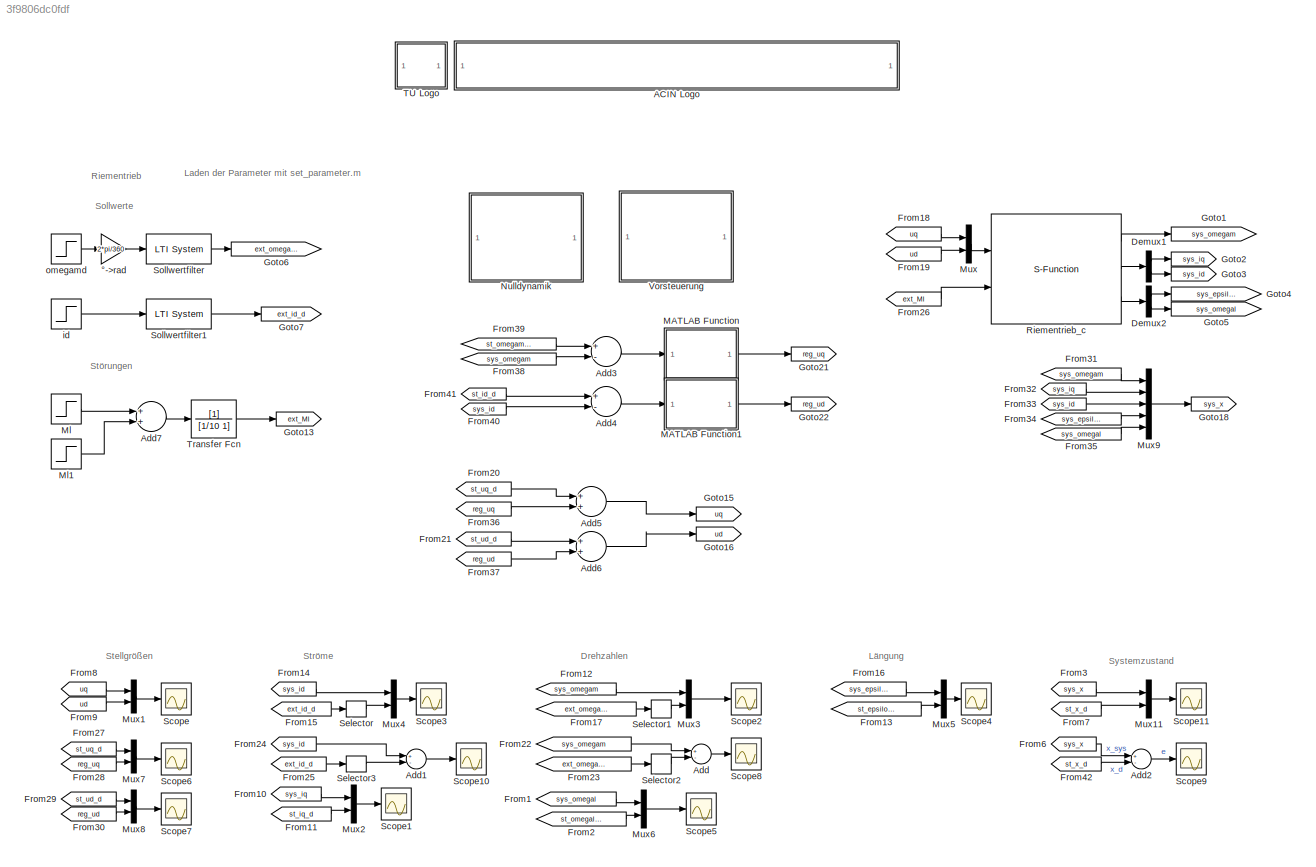
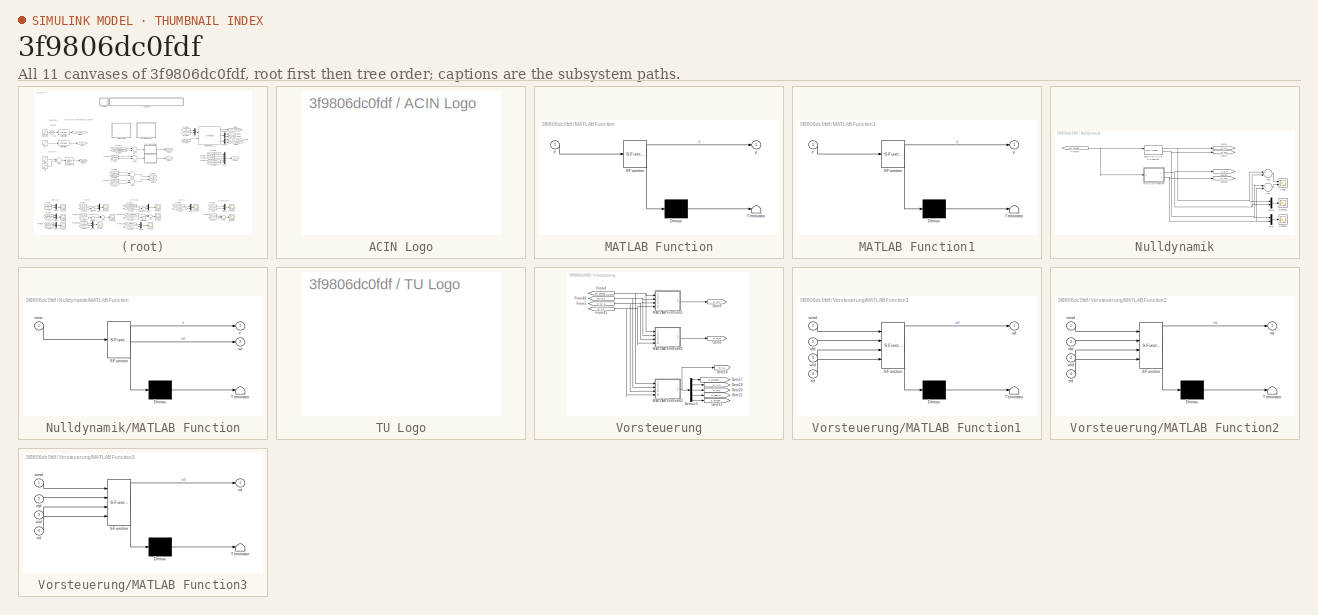
[diagram: thumbnail index - all 11 canvases of the model, root first then tree order]
MODEL slx_3f9806dc0fdf
KIND model
CONFIG AbsTol = auto
CONFIG FixedStep = auto
CONFIG InitFcn = set_parameter
CONFIG MaxStep = auto
CONFIG MinStep = auto
CONFIG RelTol = 1e-3
CONFIG SampleTimeConstraint = Unconstrained
CONFIG Solver = ode45
CONFIG SolverMode = SingleTasking
CONFIG SolverName = ode45
CONFIG StartTime = 0.0
CONFIG StopTime = 20.0
BLOCK [SubSystem] ACIN Logo
  Ports = []
  RequestExecContextInheritance = off
  UserDataPersistent = on
  Variant = off
BLOCK [Sum] Add
  InputSameDT = off
  Inputs = +-
  OutDataTypeStr = Inherit: Inherit via internal rule
  Ports = [2, 1]
  SaturateOnIntegerOverflow = off
BLOCK [Sum] Add1
  InputSameDT = off
  Inputs = +-
  OutDataTypeStr = Inherit: Inherit via internal rule
  Ports = [2, 1]
  SaturateOnIntegerOverflow = off
BLOCK [Sum] Add2
  InputSameDT = off
  Inputs = +-
  OutDataTypeStr = Inherit: Inherit via internal rule
  Ports = [2, 1]
  SaturateOnIntegerOverflow = off
BLOCK [Sum] Add3
  InputSameDT = off
  Inputs = +-
  OutDataTypeStr = Inherit: Inherit via internal rule
  Ports = [2, 1]
  SaturateOnIntegerOverflow = off
BLOCK [Sum] Add4
  InputSameDT = off
  Inputs = +-
  OutDataTypeStr = Inherit: Inherit via internal rule
  Ports = [2, 1]
  SaturateOnIntegerOverflow = off
BLOCK [Sum] Add5
  InputSameDT = off
  OutDataTypeStr = Inherit: Inherit via internal rule
  Ports = [2, 1]
  SaturateOnIntegerOverflow = off
BLOCK [Sum] Add6
  InputSameDT = off
  OutDataTypeStr = Inherit: Inherit via internal rule
  Ports = [2, 1]
  SaturateOnIntegerOverflow = off
BLOCK [Sum] Add7
  InputSameDT = off
  OutDataTypeStr = Inherit: Inherit via internal rule
  Ports = [2, 1]
  SaturateOnIntegerOverflow = off
BLOCK [Demux] Demux1
  DisplayOption = bar
  Outputs = 2
  Ports = [1, 2]
BLOCK [Demux] Demux2
  DisplayOption = bar
  Outputs = 2
  Ports = [1, 2]
BLOCK [From] From1
  GotoTag = sys_omegal
  TagVisibility = global
BLOCK [From] From10
  GotoTag = sys_iq
  TagVisibility = global
BLOCK [From] From11
  GotoTag = st_iq_d
  TagVisibility = global
BLOCK [From] From12
  GotoTag = sys_omegam
  TagVisibility = global
BLOCK [From] From13
  GotoTag = st_epsilon_d
  TagVisibility = global
BLOCK [From] From14
  GotoTag = sys_id
  TagVisibility = global
BLOCK [From] From15
  GotoTag = ext_id_d
  TagVisibility = global
BLOCK [From] From16
  GotoTag = sys_epsilon
  TagVisibility = global
BLOCK [From] From17
  GotoTag = ext_omegam_d
  TagVisibility = global
BLOCK [From] From18
  GotoTag = uq
  TagVisibility = global
BLOCK [From] From19
  GotoTag = ud
  TagVisibility = global
BLOCK [From] From2
  GotoTag = st_omegal_d
  TagVisibility = global
BLOCK [From] From20
  GotoTag = st_uq_d
  TagVisibility = global
BLOCK [From] From21
  GotoTag = st_ud_d
  TagVisibility = global
BLOCK [From] From22
  GotoTag = sys_omegam
  TagVisibility = global
BLOCK [From] From23
  GotoTag = ext_omegam_d
  TagVisibility = global
BLOCK [From] From24
  GotoTag = sys_id
  TagVisibility = global
BLOCK [From] From25
  GotoTag = ext_id_d
  TagVisibility = global
BLOCK [From] From26
  GotoTag = ext_Ml
  TagVisibility = global
BLOCK [From] From27
  GotoTag = st_uq_d
  TagVisibility = global
BLOCK [From] From28
  GotoTag = reg_uq
  TagVisibility = global
BLOCK [From] From29
  GotoTag = st_ud_d
  TagVisibility = global
BLOCK [From] From3
  GotoTag = sys_x
  TagVisibility = global
BLOCK [From] From30
  GotoTag = reg_ud
  TagVisibility = global
BLOCK [From] From31
  GotoTag = sys_omegam
  TagVisibility = global
BLOCK [From] From32
  GotoTag = sys_iq
  TagVisibility = global
BLOCK [From] From33
  GotoTag = sys_id
  TagVisibility = global
BLOCK [From] From34
  GotoTag = sys_epsilon
  TagVisibility = global
BLOCK [From] From35
  GotoTag = sys_omegal
  TagVisibility = global
BLOCK [From] From36
  GotoTag = reg_uq
  TagVisibility = global
BLOCK [From] From37
  GotoTag = reg_ud
  TagVisibility = global
BLOCK [From] From38
  GotoTag = sys_omegam
  TagVisibility = global
BLOCK [From] From39
  GotoTag = st_omegam_d
  TagVisibility = global
BLOCK [From] From40
  GotoTag = sys_id
  TagVisibility = global
BLOCK [From] From41
  GotoTag = st_id_d
  TagVisibility = global
BLOCK [From] From42
  GotoTag = st_x_d
  TagVisibility = global
BLOCK [From] From6
  GotoTag = sys_x
  TagVisibility = global
BLOCK [From] From7
  GotoTag = st_x_d
  TagVisibility = global
BLOCK [From] From8
  GotoTag = uq
  TagVisibility = global
BLOCK [From] From9
  GotoTag = ud
  TagVisibility = global
BLOCK [Goto] Goto1
  GotoTag = sys_omegam
  TagVisibility = global
BLOCK [Goto] Goto13
  GotoTag = ext_Ml
  TagVisibility = global
BLOCK [Goto] Goto15
  GotoTag = uq
  TagVisibility = global
BLOCK [Goto] Goto16
  GotoTag = ud
  TagVisibility = global
BLOCK [Goto] Goto18
  GotoTag = sys_x
  TagVisibility = global
BLOCK [Goto] Goto2
  GotoTag = sys_iq
  TagVisibility = global
BLOCK [Goto] Goto21
  GotoTag = reg_uq
  TagVisibility = global
BLOCK [Goto] Goto22
  GotoTag = reg_ud
  TagVisibility = global
BLOCK [Goto] Goto3
  GotoTag = sys_id
  TagVisibility = global
BLOCK [Goto] Goto4
  GotoTag = sys_epsilon
  TagVisibility = global
BLOCK [Goto] Goto5
  GotoTag = sys_omegal
  TagVisibility = global
BLOCK [Goto] Goto6
  GotoTag = ext_omegam_d
  TagVisibility = global
BLOCK [Goto] Goto7
  GotoTag = ext_id_d
  TagVisibility = global
BLOCK [SubSystem] MATLAB Function
  ErrorFcn = Stateflow.Translate.translate
  PermitHierarchicalResolution = ExplicitOnly
  Ports = [1, 1]
  RequestExecContextInheritance = off
  SFBlockType = MATLAB Function
  TreatAsAtomicUnit = on
  Variant = off
BLOCK [Demux] MATLAB Function/ Demux 
  Outputs = 1
  Ports = [1, 1]
BLOCK [S-Function] MATLAB Function/ SFunction 
  EnableBusSupport = on
  FunctionName = sf_sfun
  Parameters = parPI
  PortCounts = [1 2]
  Ports = [1, 2]
  SFunctionDeploymentMode = off
  Tag = Stateflow S-Function Sim_Riementrieb 5
BLOCK [Terminator] MATLAB Function/ Terminator 
BLOCK [Inport] MATLAB Function/e
  IconDisplay = Port number
BLOCK [Outport] MATLAB Function/y
  IconDisplay = Port number
BLOCK [SubSystem] MATLAB Function1
  ErrorFcn = Stateflow.Translate.translate
  PermitHierarchicalResolution = ExplicitOnly
  Ports = [1, 1]
  RequestExecContextInheritance = off
  SFBlockType = MATLAB Function
  TreatAsAtomicUnit = on
  Variant = off
BLOCK [Demux] MATLAB Function1/ Demux 
  Outputs = 1
  Ports = [1, 1]
BLOCK [S-Function] MATLAB Function1/ SFunction 
  EnableBusSupport = on
  FunctionName = sf_sfun
  Parameters = parPI
  PortCounts = [1 2]
  Ports = [1, 2]
  SFunctionDeploymentMode = off
  Tag = Stateflow S-Function Sim_Riementrieb 6
BLOCK [Terminator] MATLAB Function1/ Terminator 
BLOCK [Inport] MATLAB Function1/e
  IconDisplay = Port number
BLOCK [Outport] MATLAB Function1/y
  IconDisplay = Port number
BLOCK [Step] Ml
  After = 0.1
  SampleTime = 0
  Time = 8
BLOCK [Step] Ml1
  After = -0.1
  SampleTime = 0
  Time = 15
BLOCK [Mux] Mux
  DisplayOption = bar
  Inputs = 2
  Ports = [2, 1]
BLOCK [Mux] Mux1
  DisplayOption = bar
  Inputs = 2
  Ports = [2, 1]
BLOCK [Mux] Mux11
  DisplayOption = bar
  Inputs = 2
  Ports = [2, 1]
BLOCK [Mux] Mux2
  DisplayOption = bar
  Inputs = 2
  Ports = [2, 1]
BLOCK [Mux] Mux3
  DisplayOption = bar
  Inputs = 2
  Ports = [2, 1]
BLOCK [Mux] Mux4
  DisplayOption = bar
  Inputs = 2
  Ports = [2, 1]
BLOCK [Mux] Mux5
  DisplayOption = bar
  Inputs = 2
  Ports = [2, 1]
BLOCK [Mux] Mux6
  DisplayOption = bar
  Inputs = 2
  Ports = [2, 1]
BLOCK [Mux] Mux7
  DisplayOption = bar
  Inputs = 2
  Ports = [2, 1]
BLOCK [Mux] Mux8
  DisplayOption = bar
  Inputs = 2
  Ports = [2, 1]
BLOCK [Mux] Mux9
  DisplayOption = bar
  Inputs = 5
  Ports = [5, 1]
BLOCK [SubSystem] Nulldynamik
  Ports = []
  RequestExecContextInheritance = off
  Variant = off
BLOCK [Sum] Nulldynamik/Add
  InputSameDT = off
  Inputs = +-
  OutDataTypeStr = Inherit: Inherit via internal rule
  Ports = [2, 1]
  SaturateOnIntegerOverflow = off
BLOCK [Sum] Nulldynamik/Add1
  InputSameDT = off
  Inputs = +-
  OutDataTypeStr = Inherit: Inherit via internal rule
  Ports = [2, 1]
  SaturateOnIntegerOverflow = off
BLOCK [From] Nulldynamik/From44
  GotoTag = ext_omegam_d
  TagVisibility = global
BLOCK [Goto] Nulldynamik/Goto1
  Commented = on
  GotoTag = st_e_d
  TagVisibility = global
BLOCK [Goto] Nulldynamik/Goto10
  GotoTag = st_e_d
  TagVisibility = global
BLOCK [Goto] Nulldynamik/Goto2
  Commented = on
  GotoTag = st_wl_d
  TagVisibility = global
BLOCK [Goto] Nulldynamik/Goto23
  GotoTag = st_wl_d
  TagVisibility = global
BLOCK [M-S-Function] Nulldynamik/Level-2 MATLAB S-Function
  Commented = on
  FunctionName = Nulldynamik
  Parameters = parSys.eta_1_0 parSys.eta_2_0 [parSys.cr1 parSys.cr3 parSys.rl parSys.rm parSys.dl parSys.Il]
  Ports = [2, 2]
BLOCK [SubSystem] Nulldynamik/MATLAB Function
  ErrorFcn = Stateflow.Translate.translate
  PermitHierarchicalResolution = ExplicitOnly
  Ports = [1, 2]
  RequestExecContextInheritance = off
  SFBlockType = MATLAB Function
  TreatAsAtomicUnit = on
  Variant = off
BLOCK [Demux] Nulldynamik/MATLAB Function/ Demux 
  Outputs = 1
  Ports = [1, 1]
BLOCK [S-Function] Nulldynamik/MATLAB Function/ SFunction 
  EnableBusSupport = on
  FunctionName = sf_sfun
  Parameters = parSys
  PortCounts = [1 3]
  Ports = [1, 3]
  SFunctionDeploymentMode = off
  Tag = Stateflow S-Function Sim_Riementrieb 2
BLOCK [Terminator] Nulldynamik/MATLAB Function/ Terminator 
BLOCK [Outport] Nulldynamik/MATLAB Function/e
  IconDisplay = Port number
BLOCK [Outport] Nulldynamik/MATLAB Function/wl
  IconDisplay = Port number
  Port = 2
BLOCK [Inport] Nulldynamik/MATLAB Function/wmv
  IconDisplay = Port number
BLOCK [Mux] Nulldynamik/Mux
  DisplayOption = bar
  Inputs = 2
  Ports = [2, 1]
BLOCK [Mux] Nulldynamik/Mux1
  DisplayOption = bar
  Inputs = 2
  Ports = [2, 1]
BLOCK [Scope] Nulldynamik/Scope
  NumInputPorts = 2
  Ports = [2]
  ScopeSpecificationString = C++SS(StrPVP('Location','[1, 48, 1281, 759]'),StrPVP('Open','off'),MxPVP('AxesTitles',24,'struct(''axes1'',''%<SignalLabel>'',''axes2'',''%<SignalLabel>'')'),MxPVP('ScopeGraphics',28,'struct(''FigureColor'',''[0.5 0.5 0.5]'',''AxesColor'',''[0 0 0]'',''AxesTickColor'',''[1 1 1]'',''LineColors'',''[1 1 0;1 0 1;0 1 1;1 0 0;0 1 0;0 0 1]'',''LineStyles'',''-|-|-|-|-|-'',''LineWidths'',''[0.5 0.5 0.5 0...<+362ch>
BLOCK [Scope] Nulldynamik/Scope12
  Ports = [1]
  ScopeSpecificationString = C++SS(StrPVP('Location','[5, 48, 1285, 759]'),StrPVP('Open','off'),MxPVP('AxesTitles',24,'struct(''axes1'',''%<SignalLabel>'')'),MxPVP('ScopeGraphics',28,'struct(''FigureColor'',''[0.5 0.5 0.5]'',''AxesColor'',''[0 0 0]'',''AxesTickColor'',''[1 1 1]'',''LineColors'',''[1 1 0;1 0 1;0 1 1;1 0 0;0 1 0;0 0 1]'',''LineStyles'',''-|-|-|-|-|-'',''LineWidths'',''[0.5 0.5 0.5 0.5 0.5 0.5]'',''MarkerStyles'...<+318ch>
BLOCK [Scope] Nulldynamik/Scope13
  Ports = [1]
  ScopeSpecificationString = C++SS(StrPVP('Location','[5, 48, 1285, 759]'),StrPVP('Open','off'),MxPVP('AxesTitles',24,'struct(''axes1'',''%<SignalLabel>'')'),MxPVP('ScopeGraphics',28,'struct(''FigureColor'',''[0.5 0.5 0.5]'',''AxesColor'',''[0 0 0]'',''AxesTickColor'',''[1 1 1]'',''LineColors'',''[1 1 0;1 0 1;0 1 1;1 0 0;0 1 0;0 0 1]'',''LineStyles'',''-|-|-|-|-|-'',''LineWidths'',''[0.5 0.5 0.5 0.5 0.5 0.5]'',''MarkerStyles'...<+271ch>
BLOCK [S-Function] Riementrieb_c
  EnableBusSupport = off
  FunctionName = Riementrieb_S_c
  Parameters = parSys
  Ports = [2, 3]
  SFunctionDeploymentMode = off
BLOCK [Scope] Scope
  Ports = [1]
  ScopeSpecificationString = C++SS(StrPVP('Location','[1, 48, 1281, 759]'),StrPVP('Open','off'),MxPVP('AxesTitles',24,'struct(''axes1'',''%<SignalLabel>'')'),MxPVP('ScopeGraphics',28,'struct(''FigureColor'',''[0.5 0.5 0.5]'',''AxesColor'',''[0 0 0]'',''AxesTickColor'',''[1 1 1]'',''LineColors'',''[1 1 0;1 0 1;0 1 1;1 0 0;0 1 0;0 0 1]'',''LineStyles'',''-|-|-|-|-|-'',''LineWidths'',''[0.5 0.5 0.5 0.5 0.5 0.5]'',''MarkerStyles'...<+277ch>
BLOCK [Scope] Scope1
  Ports = [1]
  ScopeSpecificationString = C++SS(StrPVP('Location','[5, 52, 1285, 993]'),StrPVP('Open','off'),MxPVP('AxesTitles',24,'struct(''axes1'',''%<SignalLabel>'')'),StrPVP('ShowLegends','off'),StrPVP('YMin','-300000'),StrPVP('YMax','275000'),StrPVP('SaveName','ScopeData1'),StrPVP('DataFormat','StructureWithTime'),StrPVP('LimitDataPoints','off'),StrPVP('BlockParamSampleTime','0'),StrPVP('Decimation','1'),StrPVP('BlockParamSampleInput...<+9ch>
BLOCK [Scope] Scope10
  Ports = [1]
  ScopeSpecificationString = C++SS(StrPVP('Location','[5, 52, 1285, 993]'),StrPVP('Open','off'),MxPVP('AxesTitles',24,'struct(''axes1'',''%<SignalLabel>'')'),StrPVP('ShowLegends','off'),StrPVP('SaveName','ScopeData10'),StrPVP('DataFormat','StructureWithTime'),StrPVP('LimitDataPoints','off'),StrPVP('BlockParamSampleTime','0'),StrPVP('Decimation','1'),StrPVP('BlockParamSampleInput','off'))
BLOCK [Scope] Scope11
  Ports = [1]
  ScopeSpecificationString = Simulink.scopes.TimeScopeBlockCfg('CurrentConfiguration', extmgr.ConfigurationSet(extmgr.Configuration('Core','General UI',true),extmgr.Configuration('Core','Source UI',true),extmgr.Configuration('Sources','WiredSimulink',true,'DataLoggingVariableName','ScopeData11','DataLoggingSaveFormat','StructureWithTime','DataLoggingDecimation','1','DataLoggingDecimateData',true),extmgr.Configuration('Visuals...<+1854ch>
BLOCK [Scope] Scope2
  Ports = [1]
  ScopeSpecificationString = C++SS(StrPVP('Location','[5, 48, 1285, 759]'),StrPVP('Open','off'),MxPVP('AxesTitles',24,'struct(''axes1'',''%<SignalLabel>'')'),MxPVP('ScopeGraphics',28,'struct(''FigureColor'',''[0.5 0.5 0.5]'',''AxesColor'',''[0 0 0]'',''AxesTickColor'',''[1 1 1]'',''LineColors'',''[1 1 0;1 0 1;0 1 1;1 0 0;0 1 0;0 0 1]'',''LineStyles'',''-|-|-|-|-|-'',''LineWidths'',''[0.5 0.5 0.5 0.5 0.5 0.5]'',''MarkerStyles'...<+360ch>
BLOCK [Scope] Scope3
  Ports = [1]
  ScopeSpecificationString = C++SS(StrPVP('Location','[5, 52, 1285, 993]'),StrPVP('Open','off'),MxPVP('AxesTitles',24,'struct(''axes1'',''%<SignalLabel>'')'),StrPVP('ShowLegends','off'),StrPVP('TimeRange','1.762100082034454'),StrPVP('YMin','0.005081206496519733'),StrPVP('YMax','0.107262180974478'),StrPVP('SaveName','ScopeData3'),StrPVP('DataFormat','StructureWithTime'),StrPVP('LimitDataPoints','off'),StrPVP('BlockParamSampleT...<+73ch>
BLOCK [Scope] Scope4
  Ports = [1]
  ScopeSpecificationString = C++SS(StrPVP('Location','[10, 60, 1290, 1001]'),StrPVP('Open','off'),MxPVP('AxesTitles',24,'struct(''axes1'',''%<SignalLabel>'')'),MxPVP('ScopeGraphics',28,'struct(''FigureColor'',''[0.5 0.5 0.5]'',''AxesColor'',''[0 0 0]'',''AxesTickColor'',''[1 1 1]'',''LineColors'',''[1 1 0;1 0 1;0 1 1;1 0 0;0 1 0;0 0 1]'',''LineStyles'',''-|-|-|-|-|-'',''LineWidths'',''[0.5 0.5 0.5 0.5 0.5 0.5]'',''MarkerStyle...<+314ch>
BLOCK [Scope] Scope5
  Ports = [1]
  ScopeSpecificationString = C++SS(StrPVP('Location','[5, 52, 1285, 993]'),StrPVP('Open','off'),MxPVP('AxesTitles',24,'struct(''axes1'',''%<SignalLabel>'')'),StrPVP('ShowLegends','off'),StrPVP('YMin','0'),StrPVP('YMax','7'),StrPVP('SaveName','ScopeData5'),StrPVP('DataFormat','StructureWithTime'),StrPVP('LimitDataPoints','off'),StrPVP('BlockParamSampleTime','0'),StrPVP('Decimation','1'),StrPVP('BlockParamSampleInput','off'))
BLOCK [Scope] Scope6
  Ports = [1]
  ScopeSpecificationString = C++SS(StrPVP('Location','[5, 48, 1285, 759]'),StrPVP('Open','off'),MxPVP('AxesTitles',24,'struct(''axes1'',''%<SignalLabel>'')'),MxPVP('ScopeGraphics',28,'struct(''FigureColor'',''[0.5 0.5 0.5]'',''AxesColor'',''[0 0 0]'',''AxesTickColor'',''[1 1 1]'',''LineColors'',''[1 1 0;1 0 1;0 1 1;1 0 0;0 1 0;0 0 1]'',''LineStyles'',''-|-|-|-|-|-'',''LineWidths'',''[0.5 0.5 0.5 0.5 0.5 0.5]'',''MarkerStyles'...<+322ch>
BLOCK [Scope] Scope7
  Ports = [1]
  ScopeSpecificationString = C++SS(StrPVP('Location','[1, 48, 1281, 759]'),StrPVP('Open','off'),MxPVP('AxesTitles',24,'struct(''axes1'',''%<SignalLabel>'')'),MxPVP('ScopeGraphics',28,'struct(''FigureColor'',''[0.5 0.5 0.5]'',''AxesColor'',''[0 0 0]'',''AxesTickColor'',''[1 1 1]'',''LineColors'',''[1 1 0;1 0 1;0 1 1;1 0 0;0 1 0;0 0 1]'',''LineStyles'',''-|-|-|-|-|-'',''LineWidths'',''[0.5 0.5 0.5 0.5 0.5 0.5]'',''MarkerStyles'...<+322ch>
BLOCK [Scope] Scope8
  Ports = [1]
  ScopeSpecificationString = C++SS(StrPVP('Location','[5, 52, 1285, 993]'),StrPVP('Open','off'),MxPVP('AxesTitles',24,'struct(''axes1'',''%<SignalLabel>'')'),StrPVP('ShowLegends','off'),StrPVP('SaveName','ScopeData8'),StrPVP('DataFormat','StructureWithTime'),StrPVP('LimitDataPoints','off'),StrPVP('BlockParamSampleTime','0'),StrPVP('Decimation','1'),StrPVP('BlockParamSampleInput','off'))
BLOCK [Scope] Scope9
  Ports = [1]
  ScopeSpecificationString = Simulink.scopes.TimeScopeBlockCfg('CurrentConfiguration', extmgr.ConfigurationSet(extmgr.Configuration('Core','General UI',true),extmgr.Configuration('Core','Source UI',true),extmgr.Configuration('Sources','WiredSimulink',true,'DataLoggingVariableName','ScopeData9','DataLoggingSaveFormat','StructureWithTime','DataLoggingDecimation','1','DataLoggingDecimateData',true),extmgr.Configuration('Visuals'...<+1724ch>
BLOCK [Selector] Selector
  IndexOptions = Index vector (dialog)
  Indices = [1]
  InputPortWidth = 2
  OutputSizes = 1
  Ports = [1, 1]
BLOCK [Selector] Selector1
  IndexOptions = Index vector (dialog)
  Indices = [1]
  InputPortWidth = 3
  OutputSizes = 1
  Ports = [1, 1]
BLOCK [Selector] Selector2
  IndexOptions = Index vector (dialog)
  Indices = [1]
  InputPortWidth = 3
  OutputSizes = 1
  Ports = [1, 1]
BLOCK [Selector] Selector3
  IndexOptions = Index vector (dialog)
  Indices = [1]
  InputPortWidth = 2
  OutputSizes = 1
  Ports = [1, 1]
BLOCK [Reference] Sollwertfilter  REF=cstblocks/LTI System
  Ports = [1, 1]
  SourceBlock = cstblocks/LTI System
  SourceType = LTI Block
BLOCK [Reference] Sollwertfilter1  REF=cstblocks/LTI System
  Ports = [1, 1]
  SourceBlock = cstblocks/LTI System
  SourceType = LTI Block
BLOCK [SubSystem] TU Logo
  Ports = []
  RequestExecContextInheritance = off
  UserDataPersistent = on
  Variant = off
BLOCK [TransferFcn] Transfer Fcn
  Denominator = [1/10 1]
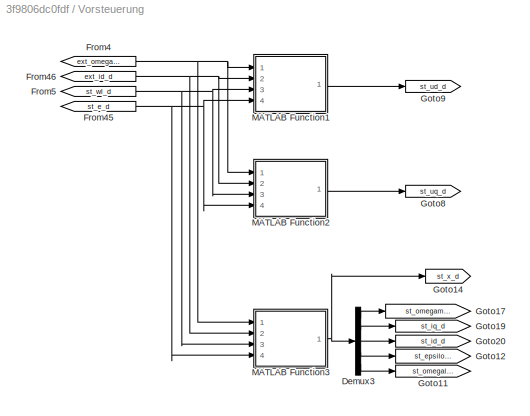
BLOCK [SubSystem] Vorsteuerung
  Ports = []
  RequestExecContextInheritance = off
  Variant = off
BLOCK [Demux] Vorsteuerung/Demux3
  DisplayOption = bar
  Outputs = 5
  Ports = [1, 5]
BLOCK [From] Vorsteuerung/From4
  GotoTag = ext_omegam_d
  TagVisibility = global
BLOCK [From] Vorsteuerung/From45
  GotoTag = st_e_d
  TagVisibility = global
BLOCK [From] Vorsteuerung/From46
  GotoTag = ext_id_d
  TagVisibility = global
BLOCK [From] Vorsteuerung/From5
  GotoTag = st_wl_d
  TagVisibility = global
BLOCK [Goto] Vorsteuerung/Goto11
  GotoTag = st_omegal_d
  TagVisibility = global
BLOCK [Goto] Vorsteuerung/Goto12
  GotoTag = st_epsilon_d
  TagVisibility = global
BLOCK [Goto] Vorsteuerung/Goto14
  GotoTag = st_x_d
  TagVisibility = global
BLOCK [Goto] Vorsteuerung/Goto17
  GotoTag = st_omegam_d
  TagVisibility = global
BLOCK [Goto] Vorsteuerung/Goto19
  GotoTag = st_iq_d
  TagVisibility = global
BLOCK [Goto] Vorsteuerung/Goto20
  GotoTag = st_id_d
  TagVisibility = global
BLOCK [Goto] Vorsteuerung/Goto8
  GotoTag = st_uq_d
  TagVisibility = global
BLOCK [Goto] Vorsteuerung/Goto9
  GotoTag = st_ud_d
  TagVisibility = global
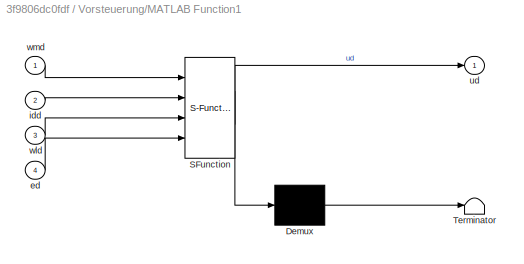
BLOCK [SubSystem] Vorsteuerung/MATLAB Function1
  ErrorFcn = Stateflow.Translate.translate
  PermitHierarchicalResolution = ExplicitOnly
  Ports = [4, 1]
  RequestExecContextInheritance = off
  SFBlockType = MATLAB Function
  TreatAsAtomicUnit = on
  Variant = off
BLOCK [Demux] Vorsteuerung/MATLAB Function1/ Demux 
  Outputs = 1
  Ports = [1, 1]
BLOCK [S-Function] Vorsteuerung/MATLAB Function1/ SFunction 
  EnableBusSupport = on
  FunctionName = sf_sfun
  Parameters = parSys
  PortCounts = [4 2]
  Ports = [4, 2]
  SFunctionDeploymentMode = off
  Tag = Stateflow S-Function Sim_Riementrieb 1
BLOCK [Terminator] Vorsteuerung/MATLAB Function1/ Terminator 
BLOCK [Inport] Vorsteuerung/MATLAB Function1/ed
  IconDisplay = Port number
  Port = 4
BLOCK [Inport] Vorsteuerung/MATLAB Function1/idd
  IconDisplay = Port number
  Port = 2
BLOCK [Outport] Vorsteuerung/MATLAB Function1/ud
  IconDisplay = Port number
BLOCK [Inport] Vorsteuerung/MATLAB Function1/wld
  IconDisplay = Port number
  Port = 3
BLOCK [Inport] Vorsteuerung/MATLAB Function1/wmd
  IconDisplay = Port number
BLOCK [SubSystem] Vorsteuerung/MATLAB Function2
  ErrorFcn = Stateflow.Translate.translate
  PermitHierarchicalResolution = ExplicitOnly
  Ports = [4, 1]
  RequestExecContextInheritance = off
  SFBlockType = MATLAB Function
  TreatAsAtomicUnit = on
  Variant = off
BLOCK [Demux] Vorsteuerung/MATLAB Function2/ Demux 
  Outputs = 1
  Ports = [1, 1]
BLOCK [S-Function] Vorsteuerung/MATLAB Function2/ SFunction 
  EnableBusSupport = on
  FunctionName = sf_sfun
  Parameters = parSys
  PortCounts = [4 2]
  Ports = [4, 2]
  SFunctionDeploymentMode = off
  Tag = Stateflow S-Function Sim_Riementrieb 3
BLOCK [Terminator] Vorsteuerung/MATLAB Function2/ Terminator 
BLOCK [Inport] Vorsteuerung/MATLAB Function2/ed
  IconDisplay = Port number
  Port = 4
BLOCK [Inport] Vorsteuerung/MATLAB Function2/idd
  IconDisplay = Port number
  Port = 2
BLOCK [Outport] Vorsteuerung/MATLAB Function2/uq
  IconDisplay = Port number
BLOCK [Inport] Vorsteuerung/MATLAB Function2/wld
  IconDisplay = Port number
  Port = 3
BLOCK [Inport] Vorsteuerung/MATLAB Function2/wmd
  IconDisplay = Port number
BLOCK [SubSystem] Vorsteuerung/MATLAB Function3
  ErrorFcn = Stateflow.Translate.translate
  PermitHierarchicalResolution = ExplicitOnly
  Ports = [4, 1]
  RequestExecContextInheritance = off
  SFBlockType = MATLAB Function
  TreatAsAtomicUnit = on
  Variant = off
BLOCK [Demux] Vorsteuerung/MATLAB Function3/ Demux 
  Outputs = 1
  Ports = [1, 1]
BLOCK [S-Function] Vorsteuerung/MATLAB Function3/ SFunction 
  EnableBusSupport = on
  FunctionName = sf_sfun
  Parameters = parSys
  PortCounts = [4 2]
  Ports = [4, 2]
  SFunctionDeploymentMode = off
  Tag = Stateflow S-Function Sim_Riementrieb 4
BLOCK [Terminator] Vorsteuerung/MATLAB Function3/ Terminator 
BLOCK [Inport] Vorsteuerung/MATLAB Function3/ed
  IconDisplay = Port number
  Port = 4
BLOCK [Inport] Vorsteuerung/MATLAB Function3/idd
  IconDisplay = Port number
  Port = 2
BLOCK [Inport] Vorsteuerung/MATLAB Function3/wld
  IconDisplay = Port number
  Port = 3
BLOCK [Inport] Vorsteuerung/MATLAB Function3/wmd
  IconDisplay = Port number
BLOCK [Outport] Vorsteuerung/MATLAB Function3/xd
  IconDisplay = Port number
BLOCK [Step] id
  After = 0.1
  SampleTime = 0
BLOCK [Step] omegamd
  After = 1000/60*360
  SampleTime = 0
  Time = 4
BLOCK [Gain] °->rad
  Gain = 2*pi/360
  OutDataTypeStr = Inherit: Inherit via internal rule
  ParamDataTypeStr = Inherit: Inherit via internal rule
  SaturateOnIntegerOverflow = off
ANNOTATION (root): Drehzahlen
ANNOTATION (root): Laden der Parameter mit set_parameter.m
ANNOTATION (root): Längung
ANNOTATION (root): Riementrieb
ANNOTATION (root): Sollwerte
ANNOTATION (root): Stellgrößen
ANNOTATION (root): Ströme
ANNOTATION (root): Störungen
ANNOTATION (root): Systemzustand
LINE Add1:1 -> Scope10:1
LINE Add2:1 -> Scope9:1
LINE Add3:1 -> MATLAB Function:1
LINE Add4:1 -> MATLAB Function1:1
LINE Add5:1 -> Goto15:1
LINE Add6:1 -> Goto16:1
LINE Add7:1 -> Transfer Fcn:1
LINE Add:1 -> Scope8:1
LINE Demux1:1 -> Goto2:1
LINE Demux1:2 -> Goto3:1
LINE Demux2:1 -> Goto4:1
LINE Demux2:2 -> Goto5:1
LINE From10:1 -> Mux2:1
LINE From11:1 -> Mux2:2
LINE From12:1 -> Mux3:1
LINE From13:1 -> Mux5:2
LINE From14:1 -> Mux4:1
LINE From15:1 -> Selector:1
LINE From16:1 -> Mux5:1
LINE From17:1 -> Selector1:1
LINE From18:1 -> Mux:1
LINE From19:1 -> Mux:2
LINE From1:1 -> Mux6:1
LINE From20:1 -> Add5:1
LINE From21:1 -> Add6:1
LINE From22:1 -> Add:1
LINE From23:1 -> Selector2:1
LINE From24:1 -> Add1:1
LINE From25:1 -> Selector3:1
LINE From26:1 -> Riementrieb_c:2
LINE From27:1 -> Mux7:1
LINE From28:1 -> Mux7:2
LINE From29:1 -> Mux8:1
LINE From2:1 -> Mux6:2
LINE From30:1 -> Mux8:2
LINE From31:1 -> Mux9:1
LINE From32:1 -> Mux9:2
LINE From33:1 -> Mux9:3
LINE From34:1 -> Mux9:4
LINE From35:1 -> Mux9:5
LINE From36:1 -> Add5:2
LINE From37:1 -> Add6:2
LINE From38:1 -> Add3:2
LINE From39:1 -> Add3:1
LINE From3:1 -> Mux11:1
LINE From40:1 -> Add4:2
LINE From41:1 -> Add4:1
LINE From42:1 -> Add2:2
LINE From6:1 -> Add2:1
LINE From7:1 -> Mux11:2
LINE From8:1 -> Mux1:1
LINE From9:1 -> Mux1:2
LINE MATLAB Function1:1 -> Goto22:1
LINE MATLAB Function:1 -> Goto21:1
LINE Ml1:1 -> Add7:2
LINE Ml:1 -> Add7:1
LINE Mux11:1 -> Scope11:1
LINE Mux1:1 -> Scope:1
LINE Mux2:1 -> Scope1:1
LINE Mux3:1 -> Scope2:1
LINE Mux4:1 -> Scope3:1
LINE Mux5:1 -> Scope4:1
LINE Mux6:1 -> Scope5:1
LINE Mux7:1 -> Scope6:1
LINE Mux8:1 -> Scope7:1
LINE Mux9:1 -> Goto18:1
LINE Mux:1 -> Riementrieb_c:1
LINE Nulldynamik/Add1:1 -> Nulldynamik/Scope:1
LINE Nulldynamik/Add:1 -> Nulldynamik/Scope:2
NET Nulldynamik/From44:1 -> Nulldynamik/Level-2 MATLAB S-Function:1, Nulldynamik/MATLAB Function:1
NET Nulldynamik/Level-2 MATLAB S-Function:1 -> Nulldynamik/Add1:1, Nulldynamik/Goto1:1, Nulldynamik/Mux1:1
NET Nulldynamik/Level-2 MATLAB S-Function:2 -> Nulldynamik/Add:1, Nulldynamik/Goto2:1, Nulldynamik/Mux:1
NET Nulldynamik/MATLAB Function:1 -> Nulldynamik/Add1:2, Nulldynamik/Goto10:1, Nulldynamik/Mux1:2
NET Nulldynamik/MATLAB Function:2 -> Nulldynamik/Add:2, Nulldynamik/Goto23:1, Nulldynamik/Mux:2
LINE Nulldynamik/Mux1:1 -> Nulldynamik/Scope12:1
LINE Nulldynamik/Mux:1 -> Nulldynamik/Scope13:1
LINE Riementrieb_c:1 -> Goto1:1
LINE Riementrieb_c:2 -> Demux1:1
LINE Riementrieb_c:3 -> Demux2:1
LINE Selector1:1 -> Mux3:2
LINE Selector2:1 -> Add:2
LINE Selector3:1 -> Add1:2
LINE Selector:1 -> Mux4:2
LINE Sollwertfilter1:1 -> Goto7:1
LINE Sollwertfilter:1 -> Goto6:1
LINE Transfer Fcn:1 -> Goto13:1
LINE Vorsteuerung/Demux3:1 -> Vorsteuerung/Goto17:1
LINE Vorsteuerung/Demux3:2 -> Vorsteuerung/Goto19:1
LINE Vorsteuerung/Demux3:3 -> Vorsteuerung/Goto20:1
LINE Vorsteuerung/Demux3:4 -> Vorsteuerung/Goto12:1
LINE Vorsteuerung/Demux3:5 -> Vorsteuerung/Goto11:1
NET Vorsteuerung/From45:1 -> Vorsteuerung/MATLAB Function1:4, Vorsteuerung/MATLAB Function2:4, Vorsteuerung/MATLAB Function3:4
NET Vorsteuerung/From46:1 -> Vorsteuerung/MATLAB Function1:2, Vorsteuerung/MATLAB Function2:2, Vorsteuerung/MATLAB Function3:2
NET Vorsteuerung/From4:1 -> Vorsteuerung/MATLAB Function1:1, Vorsteuerung/MATLAB Function2:1, Vorsteuerung/MATLAB Function3:1
NET Vorsteuerung/From5:1 -> Vorsteuerung/MATLAB Function1:3, Vorsteuerung/MATLAB Function2:3, Vorsteuerung/MATLAB Function3:3
LINE Vorsteuerung/MATLAB Function1:1 -> Vorsteuerung/Goto9:1
LINE Vorsteuerung/MATLAB Function2:1 -> Vorsteuerung/Goto8:1
NET Vorsteuerung/MATLAB Function3:1 -> Vorsteuerung/Demux3:1, Vorsteuerung/Goto14:1
LINE id:1 -> Sollwertfilter1:1
LINE omegamd:1 -> °->rad:1
LINE °->rad:1 -> Sollwertfilter:1
note: NET lines group one-source signal fan-out (src -> all destinations, sorted); 1:1 wires keep LINE
CHART Vorsteuerung/MATLAB Function1 states=1 transitions=1
  STATE_LABEL 'eML_blk_kernel()'
  STATE_LABEL 'SCRIPT:\nfunction ud  = fcn(wmd, idd, wld, ed, parSys)\n%#codegen\nwm = wmd(1);\nwmp = wmd(2);\nwmpp = wmd(3);\nid = idd(1);\nidp = idd(2);\nwl = wld;\ne = ed;\n\n%parameter;\n%Zuweisungen\nLm = parSys.Lm;\nRm = parSys.Rm;\ncr1 = parSys.cr1;\ncr3 = parSys.cr3;\nrm = parSys.rm;\ndm = parSys.dm;\nrl = parSys.rl;\ndl = parSys.dl;\nI_l = parSys.Il;\nI_m = parSys.Im;\np = parSys.p;\nPhi = parSys.Phi;\n\niq = 0.2e1 / 0.3e1 * (-2...<+154ch>'
CHART Nulldynamik/MATLAB Function states=1 transitions=1
  STATE_LABEL 'eML_blk_kernel()'
  STATE_LABEL 'SCRIPT:\nfunction [e, wl] = Null_disc(wmv, parSys)\n%#codegen\npersistent k\npersistent x1\npersistent x2\npersistent wm_old\n\nwm = wmv(1);\n\n\nif (isempty(k))\n    k = 0;\nend\nif (isempty(x1))\n    x1 = parSys.eta_1_0;\nend\nif (isempty(x2))\n    x2 = parSys.eta_2_0;\nend\nif (isempty(wm_old))\n    wm_old = 0;\nend\n\ncr1 = parSys.cr1;\ncr3 = parSys.cr3;\nIl = parSys.Il;\nrl = parSys.rl;\nrm = parSys.rm;\ndl = parSys.dl;\n...<+307ch>'
CHART Vorsteuerung/MATLAB Function2 states=1 transitions=1
  STATE_LABEL 'eML_blk_kernel()'
  STATE_LABEL 'SCRIPT:\nfunction uq  = fcn(wmd, idd, wld, ed, parSys)\n%#codegen\nwm = wmd(1);\nwmp = wmd(2);\nwmpp = wmd(3);\nid = idd(1);\nidp = idd(2);\nwl = wld;\ne = ed;\n\n%parameter;\n%Zuweisungen\nLm = parSys.Lm;\nRm = parSys.Rm;\ncr1 = parSys.cr1;\ncr3 = parSys.cr3;\nrm = parSys.rm;\ndm = parSys.dm;\nrl = parSys.rl;\ndl = parSys.dl;\nI_l = parSys.Il;\nI_m = parSys.Im;\np = parSys.p;\nPhi = parSys.Phi;\n\niq = 0.2e1 / 0.3e1 * (-2...<+374ch>'
CHART Vorsteuerung/MATLAB Function3 states=1 transitions=1
  STATE_LABEL 'eML_blk_kernel()'
  STATE_LABEL 'SCRIPT:\nfunction xd  = fcn(wmd, idd, wld, ed, parSys)\n%#codegen\nwm = wmd(1);\nwmp = wmd(2);\nwmpp = wmd(3);\nid = idd(1);\nidp = idd(2);\nwl = wld;\ne = ed;\n\n%parameter;\n%Zuweisungen\nLm = parSys.Lm;\nRm = parSys.Rm;\ncr1 = parSys.cr1;\ncr3 = parSys.cr3;\nrm = parSys.rm;\ndm = parSys.dm;\nrl = parSys.rl;\ndl = parSys.dl;\nI_l = parSys.Il;\nI_m = parSys.Im;\np = parSys.p;\nPhi = parSys.Phi;\n\niq = 0.2e1 / 0.3e1 * (-2...<+101ch>'
CHART MATLAB Function states=1 transitions=1
  STATE_LABEL 'eML_blk_kernel()'
  STATE_LABEL 'SCRIPT:\nfunction y = fcn(e, parPI)\n%#codegen\npersistent x\nif (isempty(x))\n    x = 0;\nend\n\nx = parPI.a2*x+parPI.b2*e;\ny = parPI.c2*x+parPI.d2*e;\n\nend'
CHART MATLAB Function1 states=1 transitions=1
  STATE_LABEL 'eML_blk_kernel()'
  STATE_LABEL 'SCRIPT:\nfunction y = fcn(e, parPI)\n%#codegen\npersistent x\nif (isempty(x))\n    x = 0;\nend\n\nx = parPI.a1*x+parPI.b1*e;\ny = parPI.c1*x+parPI.d1*e;\n\nend'
